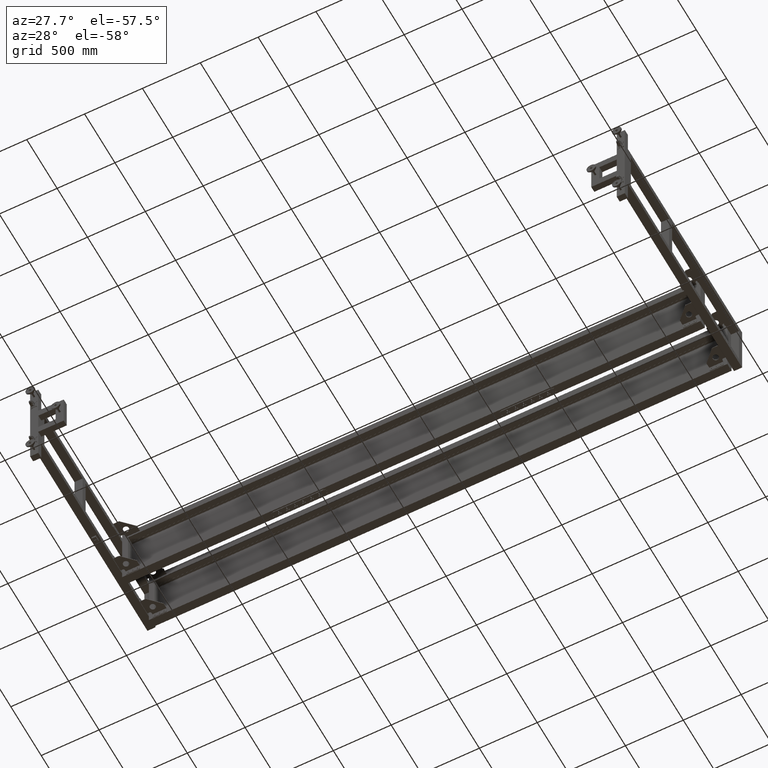
[diagram: clean part render]
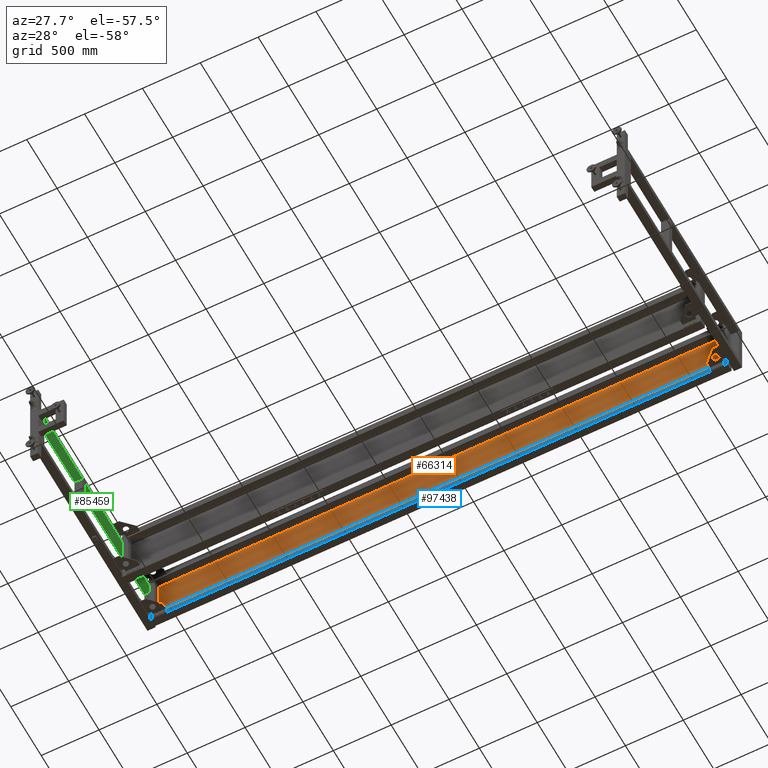
[diagram: same view with three faces highlighted in distinct colors, each labeled with its STEP entity id]
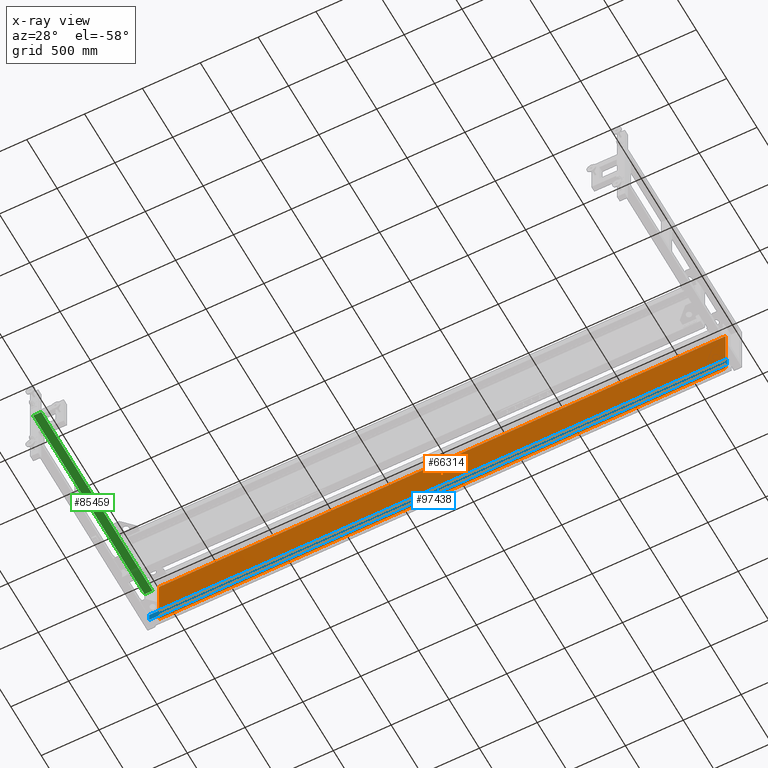
[diagram: x-ray of the same camera — body ghosted, the three highlighted faces saturated]
A machine part, auxiliary view with three faces highlighted in distinct colors.
The next image is the same camera in x-ray (body ghosted, the three faces saturated) — at least one of them is partly hidden behind the body in this view.
Their STEP definitions:

[orange] entity #66314 — the highlighted planar face has unit normal (-0, 1, 0).
#346 = VECTOR ( 'NONE', #30754, 1000.000000000000000 ) ;
#2332 = VERTEX_POINT ( 'NONE', #37228 ) ;
#6104 = DIRECTION ( 'NONE',  ( 1.000000000000000000, 4.543257172554223644E-16, 0.000000000000000000 ) ) ;
#6810 = VECTOR ( 'NONE', #6104, 1000.000000000000000 ) ;
#7624 = VERTEX_POINT ( 'NONE', #40496 ) ;
#16808 = CARTESIAN_POINT ( 'NONE',  ( -1216.662487437185973, 995.4410804020130854, -228.4899999999988438 ) ) ;
#21488 = VERTEX_POINT ( 'NONE', #79139 ) ;
#21622 = CARTESIAN_POINT ( 'NONE',  ( 1880.317512562814727, 995.4410804020137675, 228.4900000000011744 ) ) ;
#24116 = LINE ( 'NONE', #16808, #115847 ) ;
#25243 = EDGE_LOOP ( 'NONE', ( #112376, #79367, #25650, #109645 ) ) ;
#25650 = ORIENTED_EDGE ( 'NONE', *, *, #112653, .T. ) ;
#26327 = AXIS2_PLACEMENT_3D ( 'NONE', #99973, #53109, #117659 ) ;
#27259 = EDGE_CURVE ( 'NONE', #88202, #2332, #95279, .T. ) ;
#29408 = EDGE_CURVE ( 'NONE', #7624, #88202, #115413, .T. ) ;
#30754 = DIRECTION ( 'NONE',  ( -1.000000000000000000, -4.543257172554223644E-16, 0.000000000000000000 ) ) ;
#32014 = CARTESIAN_POINT ( 'NONE',  ( 3680.317512562815864, 995.4410804020137675, -228.4899999999988438 ) ) ;
#35275 = CARTESIAN_POINT ( 'NONE',  ( -516.6624874371854048, 995.4410804020130854, -228.4899999999988438 ) ) ;
#37228 = CARTESIAN_POINT ( 'NONE',  ( -1216.662487437185973, 995.4410804020126307, 228.4900000000091609 ) ) ;
#40496 = CARTESIAN_POINT ( 'NONE',  ( 3680.317512562815864, 995.4410804020137675, -228.4899999999988438 ) ) ;
#45521 = CARTESIAN_POINT ( 'NONE',  ( 3680.317512562815864, 995.4410804020133128, 228.4900000000091609 ) ) ;
#46625 = VECTOR ( 'NONE', #69128, 1000.000000000000000 ) ;
#50598 = EDGE_CURVE ( 'NONE', #21488, #2332, #24116, .T. ) ;
#53109 = DIRECTION ( 'NONE',  ( -4.543257172554223644E-16, 1.000000000000000000, 1.000000000000000472E-15 ) ) ;
#59183 = PLANE ( 'NONE',  #26327 ) ;
#66314 = ADVANCED_FACE ( 'NONE', ( #77446 ), #59183, .F. ) ;
#69128 = DIRECTION ( 'NONE',  ( 2.924973517714875585E-31, -1.000000000000000472E-15, 1.000000000000000000 ) ) ;
#72167 = DIRECTION ( 'NONE',  ( 0.000000000000000000, -1.000000000000000472E-15, 1.000000000000000000 ) ) ;
#77446 = FACE_OUTER_BOUND ( 'NONE', #25243, .T. ) ;
#79139 = CARTESIAN_POINT ( 'NONE',  ( -1216.662487437185973, 995.4410804020130854, -228.4899999999988438 ) ) ;
#79367 = ORIENTED_EDGE ( 'NONE', *, *, #50598, .F. ) ;
#81507 = LINE ( 'NONE', #35275, #6810 ) ;
#88202 = VERTEX_POINT ( 'NONE', #45521 ) ;
#95279 = LINE ( 'NONE', #21622, #346 ) ;
#99973 = CARTESIAN_POINT ( 'NONE',  ( 681.8275125628146043, 995.4410804020134265, 1.165734175856414367E-12 ) ) ;
#109645 = ORIENTED_EDGE ( 'NONE', *, *, #29408, .T. ) ;
#112376 = ORIENTED_EDGE ( 'NONE', *, *, #27259, .T. ) ;
#112653 = EDGE_CURVE ( 'NONE', #21488, #7624, #81507, .T. ) ;
#115413 = LINE ( 'NONE', #32014, #46625 ) ;
#115847 = VECTOR ( 'NONE', #72167, 1000.000000000000000 ) ;
#117659 = DIRECTION ( 'NONE',  ( 4.543257172554225407E-31, -1.000000000000000472E-15, 1.000000000000000000 ) ) ;

[blue] entity #97438 — the highlighted planar face has unit normal (-0, 1, 0).
#7334 = DIRECTION ( 'NONE',  ( -1.000000000000000000, -4.543257172554223644E-16, 0.000000000000000000 ) ) ;
#9307 = DIRECTION ( 'NONE',  ( -4.543257172554223644E-16, 1.000000000000000000, 4.000000000000000311E-15 ) ) ;
#14538 = VERTEX_POINT ( 'NONE', #35760 ) ;
#21347 = DIRECTION ( 'NONE',  ( 1.169989407085949709E-30, -4.000000000000000311E-15, 1.000000000000000000 ) ) ;
#21469 = LINE ( 'NONE', #31193, #74450 ) ;
#22089 = ORIENTED_EDGE ( 'NONE', *, *, #46247, .T. ) ;
#26918 = CARTESIAN_POINT ( 'NONE',  ( 1929.827512562814263, 926.9410804020152455, -299.9999999999991473 ) ) ;
#27129 = CARTESIAN_POINT ( 'NONE',  ( 3729.827512562816082, 926.9410804020144496, -229.9999999999991473 ) ) ;
#31193 = CARTESIAN_POINT ( 'NONE',  ( -1266.172487437185964, 926.9410804020142223, -299.9999999999991473 ) ) ;
#35760 = CARTESIAN_POINT ( 'NONE',  ( -1266.172487437185964, 926.9410804020142223, -299.9999999999991473 ) ) ;
#38734 = DIRECTION ( 'NONE',  ( -1.000000000000000000, -4.543257172554223644E-16, 0.000000000000000000 ) ) ;
#39303 = CARTESIAN_POINT ( 'NONE',  ( -1266.172487437185964, 926.9410804020137675, -229.9999999999991473 ) ) ;
#45667 = EDGE_CURVE ( 'NONE', #81913, #117040, #104768, .T. ) ;
#46247 = EDGE_CURVE ( 'NONE', #117040, #79971, #60856, .T. ) ;
#48232 = DIRECTION ( 'NONE',  ( 1.817302869021689462E-30, -4.000000000000000311E-15, 1.000000000000000000 ) ) ;
#59140 = DIRECTION ( 'NONE',  ( 0.000000000000000000, -4.000000000000000311E-15, 1.000000000000000000 ) ) ;
#59265 = ORIENTED_EDGE ( 'NONE', *, *, #111666, .F. ) ;
#59929 = LINE ( 'NONE', #97095, #101808 ) ;
#60856 = LINE ( 'NONE', #107778, #89827 ) ;
#68194 = CARTESIAN_POINT ( 'NONE',  ( 3729.827512562816082, 926.9410804020147907, -299.9999999999991473 ) ) ;
#68273 = VECTOR ( 'NONE', #21347, 1000.000000000000000 ) ;
#74450 = VECTOR ( 'NONE', #59140, 1000.000000000000000 ) ;
#76112 = FACE_OUTER_BOUND ( 'NONE', #104700, .T. ) ;
#79971 = VERTEX_POINT ( 'NONE', #39303 ) ;
#81913 = VERTEX_POINT ( 'NONE', #120494 ) ;
#88238 = EDGE_CURVE ( 'NONE', #81913, #14538, #59929, .T. ) ;
#89827 = VECTOR ( 'NONE', #7334, 1000.000000000000000 ) ;
#97095 = CARTESIAN_POINT ( 'NONE',  ( 1929.827512562814263, 926.9410804020152455, -299.9999999999991473 ) ) ;
#97266 = AXIS2_PLACEMENT_3D ( 'NONE', #26918, #9307, #48232 ) ;
#97438 = ADVANCED_FACE ( 'NONE', ( #76112 ), #103016, .F. ) ;
#101808 = VECTOR ( 'NONE', #38734, 1000.000000000000000 ) ;
#103016 = PLANE ( 'NONE',  #97266 ) ;
#104700 = EDGE_LOOP ( 'NONE', ( #22089, #59265, #115101, #108259 ) ) ;
#104768 = LINE ( 'NONE', #68194, #68273 ) ;
#107778 = CARTESIAN_POINT ( 'NONE',  ( 1929.827512562814263, 926.9410804020147907, -229.9999999999991473 ) ) ;
#108259 = ORIENTED_EDGE ( 'NONE', *, *, #45667, .T. ) ;
#111666 = EDGE_CURVE ( 'NONE', #14538, #79971, #21469, .T. ) ;
#115101 = ORIENTED_EDGE ( 'NONE', *, *, #88238, .F. ) ;
#117040 = VERTEX_POINT ( 'NONE', #27129 ) ;
#120494 = CARTESIAN_POINT ( 'NONE',  ( 3729.827512562816082, 926.9410804020147907, -299.9999999999991473 ) ) ;

[green] entity #85459 — the highlighted planar face has unit normal (-0, 0, 1).
#2022 = DIRECTION ( 'NONE',  ( -0.000000000000000000, 0.000000000000000000, 1.000000000000000000 ) ) ;
#3248 = VERTEX_POINT ( 'NONE', #6273 ) ;
#3283 = DIRECTION ( 'NONE',  ( 1.000000000000000000, -4.448884876874220047E-16, 0.000000000000000000 ) ) ;
#6273 = CARTESIAN_POINT ( 'NONE',  ( -1268.172487437185055, 919.4410804020135402, 199.9999999999999716 ) ) ;
#7157 = VERTEX_POINT ( 'NONE', #26639 ) ;
#8419 = DIRECTION ( 'NONE',  ( -1.000000000000000000, 1.585669478376821542E-15, -0.000000000000000000 ) ) ;
#8895 = CARTESIAN_POINT ( 'NONE',  ( -1338.172487437185964, 986.4410804020109254, 199.9999999999999716 ) ) ;
#10078 = EDGE_CURVE ( 'NONE', #38027, #54614, #17385, .T. ) ;
#10552 = DIRECTION ( 'NONE',  ( 1.000000000000000000, 0.000000000000000000, 0.000000000000000000 ) ) ;
#12373 = FACE_OUTER_BOUND ( 'NONE', #47935, .T. ) ;
#13019 = LINE ( 'NONE', #71338, #81577 ) ;
#13708 = LINE ( 'NONE', #39340, #119307 ) ;
#17385 = LINE ( 'NONE', #8895, #52306 ) ;
#18257 = DIRECTION ( 'NONE',  ( -1.000000000000000078E-15, -1.000000000000000000, -0.000000000000000000 ) ) ;
#23591 = EDGE_CURVE ( 'NONE', #31330, #3248, #36125, .T. ) ;
#26639 = CARTESIAN_POINT ( 'NONE',  ( -1268.172487437185964, 926.9410804020111527, 199.9999999999999716 ) ) ;
#26958 = DIRECTION ( 'NONE',  ( 0.000000000000000000, 1.000000000000000000, 0.000000000000000000 ) ) ;
#27422 = ORIENTED_EDGE ( 'NONE', *, *, #29515, .T. ) ;
#29515 = EDGE_CURVE ( 'NONE', #38027, #7157, #13019, .T. ) ;
#31330 = VERTEX_POINT ( 'NONE', #114368 ) ;
#31830 = ORIENTED_EDGE ( 'NONE', *, *, #77686, .T. ) ;
#34452 = EDGE_CURVE ( 'NONE', #118920, #31330, #94458, .T. ) ;
#36125 = LINE ( 'NONE', #110392, #108191 ) ;
#36884 = EDGE_CURVE ( 'NONE', #7157, #117235, #79894, .T. ) ;
#36894 = ORIENTED_EDGE ( 'NONE', *, *, #36884, .T. ) ;
#38027 = VERTEX_POINT ( 'NONE', #38954 ) ;
#38954 = CARTESIAN_POINT ( 'NONE',  ( -1268.172487437185964, 986.4410804020135402, 199.9999999999999716 ) ) ;
#39340 = CARTESIAN_POINT ( 'NONE',  ( -1268.156444386293742, 986.4410804020136538, 199.9999999999999716 ) ) ;
#39561 = LINE ( 'NONE', #57148, #72070 ) ;
#42841 = CARTESIAN_POINT ( 'NONE',  ( -1268.172487437185964, 926.9410804020111527, 199.9999999999999716 ) ) ;
#45812 = ORIENTED_EDGE ( 'NONE', *, *, #10078, .F. ) ;
#46122 = ORIENTED_EDGE ( 'NONE', *, *, #23591, .F. ) ;
#47935 = EDGE_LOOP ( 'NONE', ( #45812, #27422, #36894, #31830, #84925, #46122, #92778, #67119 ) ) ;
#47981 = EDGE_CURVE ( 'NONE', #54614, #118920, #39561, .T. ) ;
#48795 = EDGE_CURVE ( 'NONE', #98472, #3248, #83236, .T. ) ;
#49047 = CARTESIAN_POINT ( 'NONE',  ( -1268.156444386293742, 926.9410804020111527, 199.9999999999999716 ) ) ;
#51806 = CARTESIAN_POINT ( 'NONE',  ( -1338.172487437185055, -844.5589195979888473, 199.9999999999999716 ) ) ;
#52306 = VECTOR ( 'NONE', #83687, 1000.000000000000000 ) ;
#52920 = CARTESIAN_POINT ( 'NONE',  ( -1338.172487437185964, 986.4410804020109254, 199.9999999999999716 ) ) ;
#54614 = VERTEX_POINT ( 'NONE', #52920 ) ;
#57148 = CARTESIAN_POINT ( 'NONE',  ( -1338.172487437185055, 986.4410804020136538, 199.9999999999999716 ) ) ;
#59299 = AXIS2_PLACEMENT_3D ( 'NONE', #84159, #2022, #10552 ) ;
#59916 = VECTOR ( 'NONE', #3283, 1000.000000000000000 ) ;
#62618 = VECTOR ( 'NONE', #8419, 1000.000000000000000 ) ;
#67119 = ORIENTED_EDGE ( 'NONE', *, *, #47981, .F. ) ;
#69582 = DIRECTION ( 'NONE',  ( -1.000000000000000078E-15, -1.000000000000000000, 0.000000000000000000 ) ) ;
#71338 = CARTESIAN_POINT ( 'NONE',  ( -1268.172487437185964, 996.9410804020109254, 199.9999999999999716 ) ) ;
#72070 = VECTOR ( 'NONE', #18257, 1000.000000000000000 ) ;
#76364 = DIRECTION ( 'NONE',  ( -1.000000000000000078E-15, -1.000000000000000000, -0.000000000000000000 ) ) ;
#77686 = EDGE_CURVE ( 'NONE', #117235, #98472, #13708, .T. ) ;
#78565 = CARTESIAN_POINT ( 'NONE',  ( -1268.156444386293742, 919.4410804020135402, 199.9999999999999716 ) ) ;
#79894 = LINE ( 'NONE', #42841, #59916 ) ;
#81577 = VECTOR ( 'NONE', #69582, 1000.000000000000000 ) ;
#83236 = LINE ( 'NONE', #91799, #62618 ) ;
#83687 = DIRECTION ( 'NONE',  ( -1.000000000000000000, 0.000000000000000000, 0.000000000000000000 ) ) ;
#84159 = CARTESIAN_POINT ( 'NONE',  ( -1338.172487437185055, 986.4410804020136538, 199.9999999999999716 ) ) ;
#84925 = ORIENTED_EDGE ( 'NONE', *, *, #48795, .T. ) ;
#85223 = VECTOR ( 'NONE', #88899, 1000.000000000000000 ) ;
#85459 = ADVANCED_FACE ( 'NONE', ( #12373 ), #103081, .F. ) ;
#88899 = DIRECTION ( 'NONE',  ( 1.000000000000000000, 0.000000000000000000, 0.000000000000000000 ) ) ;
#91799 = CARTESIAN_POINT ( 'NONE',  ( -1338.172487437185055, 919.4410804020136538, 199.9999999999999716 ) ) ;
#92778 = ORIENTED_EDGE ( 'NONE', *, *, #34452, .F. ) ;
#94458 = LINE ( 'NONE', #51806, #85223 ) ;
#98472 = VERTEX_POINT ( 'NONE', #78565 ) ;
#103081 = PLANE ( 'NONE',  #59299 ) ;
#108191 = VECTOR ( 'NONE', #26958, 1000.000000000000000 ) ;
#110392 = CARTESIAN_POINT ( 'NONE',  ( -1268.172487437185055, -844.5589195979888473, 199.9999999999999716 ) ) ;
#114368 = CARTESIAN_POINT ( 'NONE',  ( -1268.172487437185055, -844.5589195979888473, 199.9999999999999716 ) ) ;
#114984 = CARTESIAN_POINT ( 'NONE',  ( -1338.172487437185055, -844.5589195979888473, 199.9999999999999716 ) ) ;
#117235 = VERTEX_POINT ( 'NONE', #49047 ) ;
#118920 = VERTEX_POINT ( 'NONE', #114984 ) ;
#119307 = VECTOR ( 'NONE', #76364, 1000.000000000000000 ) ;